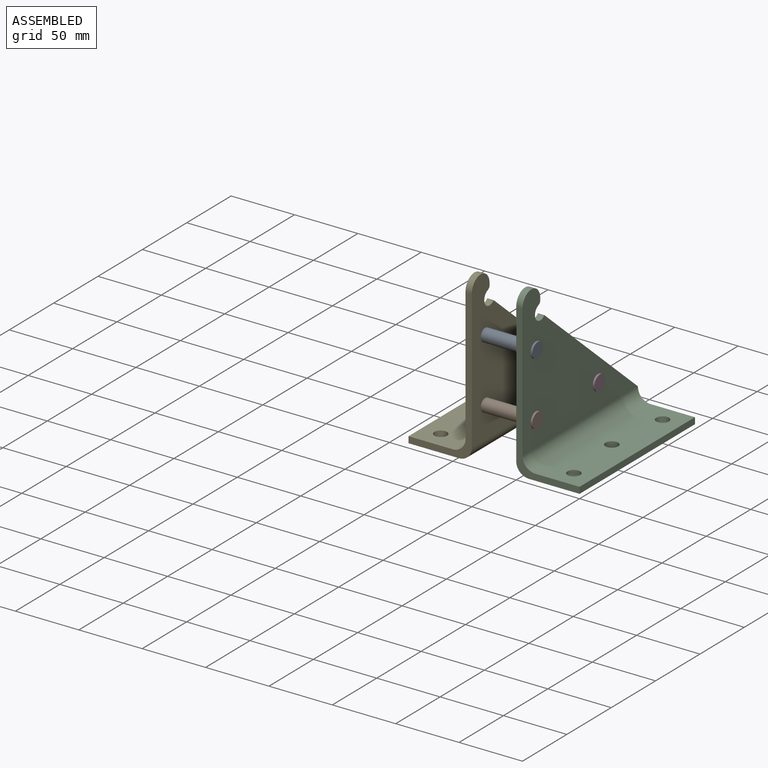
[diagram: assembled view]
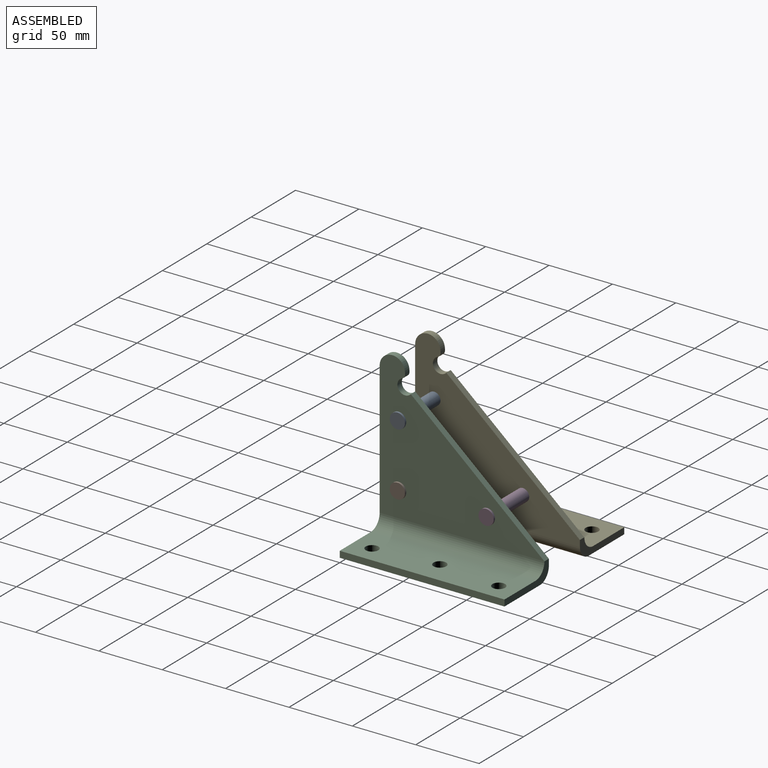
[diagram: assembled view, second angle]
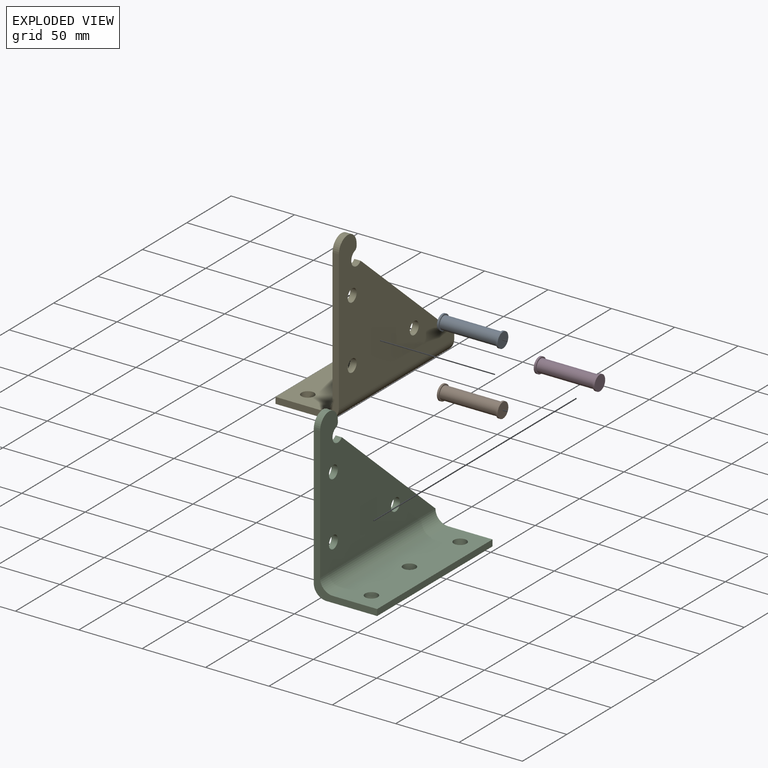
[diagram: exploded view]
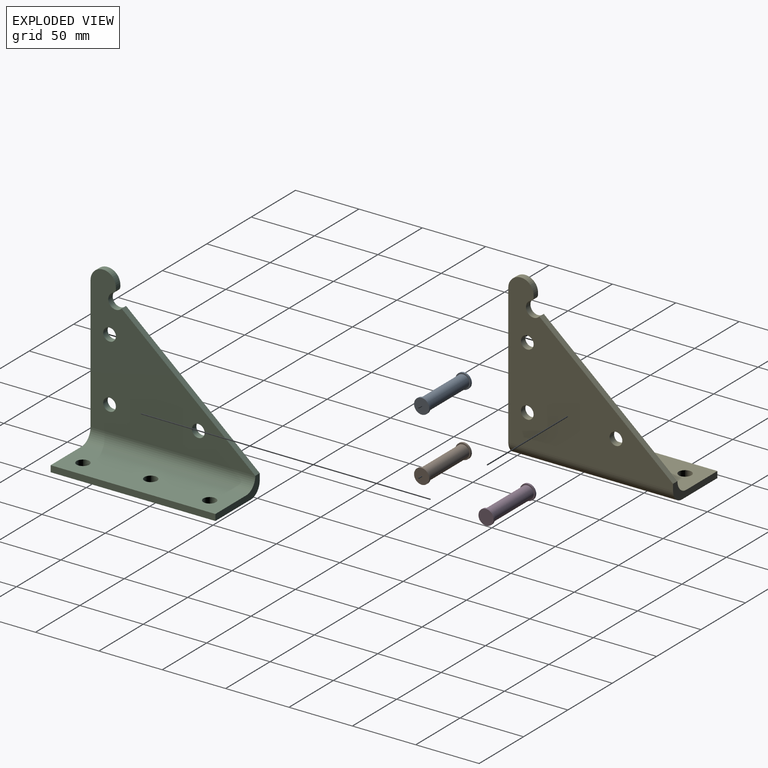
[diagram: exploded view, second angle]
ASSEMBLY  parts=5 mates=5
PART A: 7 faces, bbox 48x12x12 mm
  f0: plane 12x12mm, normal (1,0,0), area 113.1mm2, adj f1
  f1: cylinder r=6mm len=12mm, axis (1,0,0), area 56.5mm2, adj f0,f2
  f2: plane 12x12mm, normal (-1,0,0), area 34.6mm2, adj f1,f3
  f3: cylinder r=5mm len=45mm, axis (1,0,0), area 1413.7mm2, adj f2,f4
  f4: plane 12x12mm, normal (1,0,0), area 34.6mm2, adj f3,f5
  f5: cylinder r=6mm len=12mm, axis (1,0,0), area 56.5mm2, adj f4,f6
  f6: plane 12x12mm, normal (-1,0,0), area 113.1mm2, adj f5
PART B: same geometry as A
PART C: 20 faces, bbox 50x130x130 mm
  f0: plane 130x40mm, normal (0,0,-1), area 4964.4mm2, adj f1,f4,f7,f11,f17,f18,f19
  f1: plane 50x15mm, normal (0,1,0), area 300mm2, adj f0,f2,f6,f7,f8,f9,f11
  f2: plane 105.46x91.08mm, normal (0,0.65,0.76), area 696.7mm2, adj f1,f5,f6,f15
  f3: plane 5x1.51mm, normal (0,1,0), area 7.6mm2, adj f5,f6,f10,f16
  f4: plane 120x50mm, normal (0,-1,0), area 825mm2, adj f0,f5,f6,f7,f8,f9,f10,f11
  f5: plane 130x115mm, normal (1,0,0), area 7173.4mm2, adj f2,f3,f4,f9,f10,f12,f13,f14
  f6: plane 130x120mm, normal (-1,0,0), area 7823.4mm2, adj f1,f2,f3,f4,f10,f11,f12,f13
  f7: plane 130x5mm, normal (1,0,0), area 650mm2, adj f0,f1,f4,f8
  f8: plane 130x35mm, normal (0,0,1), area 4314.4mm2, adj f1,f4,f7,f9,f17,f18,f19
  f9: cylinder r=10mm len=130mm, axis (0,1,0), area 2042mm2, adj f1,f4,f5,f8
  f10: cylinder r=10mm len=20mm, axis (-1,0,0), area 157.1mm2, adj f3,f4,f5,f6
  f11: cylinder r=10mm len=130mm, axis (0,1,0), area 2042mm2, adj f0,f1,f4,f6
  f12: cylinder r=5mm len=10mm, axis (1,0,0), area 157.1mm2, adj f5,f6
  f13: cylinder r=5mm len=10mm, axis (1,0,0), area 157.1mm2, adj f5,f6
  f14: cylinder r=5mm len=10mm, axis (1,0,0), area 157.1mm2, adj f5,f6
  f15: cylinder r=6mm len=11.66mm, axis (1,0,0), area 109.8mm2, adj f2,f5,f6,f16
  f16: cylinder r=3mm len=5mm, axis (1,0,0), area 18.5mm2, adj f3,f5,f6,f15
  f17: cylinder r=5mm len=10mm, axis (0,0,1), area 157.1mm2, adj f0,f8
  f18: cylinder r=5mm len=10mm, axis (0,0,1), area 157.1mm2, adj f0,f8
  f19: cylinder r=5mm len=10mm, axis (0,0,1), area 157.1mm2, adj f0,f8
PART D: same geometry as A
PART E: 20 faces, bbox 50x130x130 mm
  f0: plane 105.46x91.08mm, normal (0,0.65,0.76), area 696.7mm2, adj f2,f5,f6,f15
  f1: plane 5x1.51mm, normal (0,1,0), area 7.6mm2, adj f2,f6,f10,f16
  f2: plane 130x120mm, normal (1,0,0), area 7823.4mm2, adj f0,f1,f3,f5,f10,f11,f12,f13
  f3: plane 120x50mm, normal (0,-1,0), area 825mm2, adj f2,f4,f6,f7,f8,f9,f10,f11
  f4: plane 130x40mm, normal (0,0,-1), area 4964.4mm2, adj f3,f5,f8,f11,f17,f18,f19
  f5: plane 50x15mm, normal (0,1,0), area 300mm2, adj f0,f2,f4,f7,f8,f9,f11
  f6: plane 130x115mm, normal (-1,0,0), area 7173.4mm2, adj f0,f1,f3,f9,f10,f12,f13,f14
  f7: plane 130x35mm, normal (0,0,1), area 4314.4mm2, adj f3,f5,f8,f9,f17,f18,f19
  f8: plane 130x5mm, normal (-1,0,0), area 650mm2, adj f3,f4,f5,f7
  f9: cylinder r=10mm len=130mm, axis (0,-1,0), area 2042mm2, adj f3,f5,f6,f7
  f10: cylinder r=10mm len=20mm, axis (1,0,0), area 157.1mm2, adj f1,f2,f3,f6
  f11: cylinder r=10mm len=130mm, axis (0,1,0), area 2042mm2, adj f2,f3,f4,f5
  f12: cylinder r=5mm len=10mm, axis (-1,0,0), area 157.1mm2, adj f2,f6
  f13: cylinder r=5mm len=10mm, axis (-1,0,0), area 157.1mm2, adj f2,f6
  f14: cylinder r=5mm len=10mm, axis (-1,0,0), area 157.1mm2, adj f2,f6
  f15: cylinder r=6mm len=11.66mm, axis (-1,0,0), area 109.8mm2, adj f0,f2,f6,f16
  f16: cylinder r=3mm len=5mm, axis (-1,0,0), area 18.5mm2, adj f1,f2,f6,f15
  f17: cylinder r=5mm len=10mm, axis (0,0,1), area 157.1mm2, adj f4,f7
  f18: cylinder r=5mm len=10mm, axis (0,0,1), area 157.1mm2, adj f4,f7
  f19: cylinder r=5mm len=10mm, axis (0,0,1), area 157.1mm2, adj f4,f7
PLACE A rot(axis=(-1,0,0),167.3deg) t=(-17.5,15,85)mm
PLACE B t=(-17.5,15,35)mm
PLACE C at identity fixed
PLACE D t=(-17.5,85,35)mm
PLACE E t=(-35,0,0)mm
MATE cylindrical A.f1 <-> C.f14  axis (1,0,0) through (5,15,85)mm
MATE cylindrical B.f1 <-> C.f13  axis (1,0,0) through (5,15,35)mm
MATE cylindrical B.f1 <-> E.f13  axis (1,0,0) through (-40,15,35)mm
MATE cylindrical D.f1 <-> C.f12  axis (1,0,0) through (5,85,35)mm
MATE cylindrical E.f14 <-> A.f1  axis (-1,0,0) through (-40,15,85)mm
